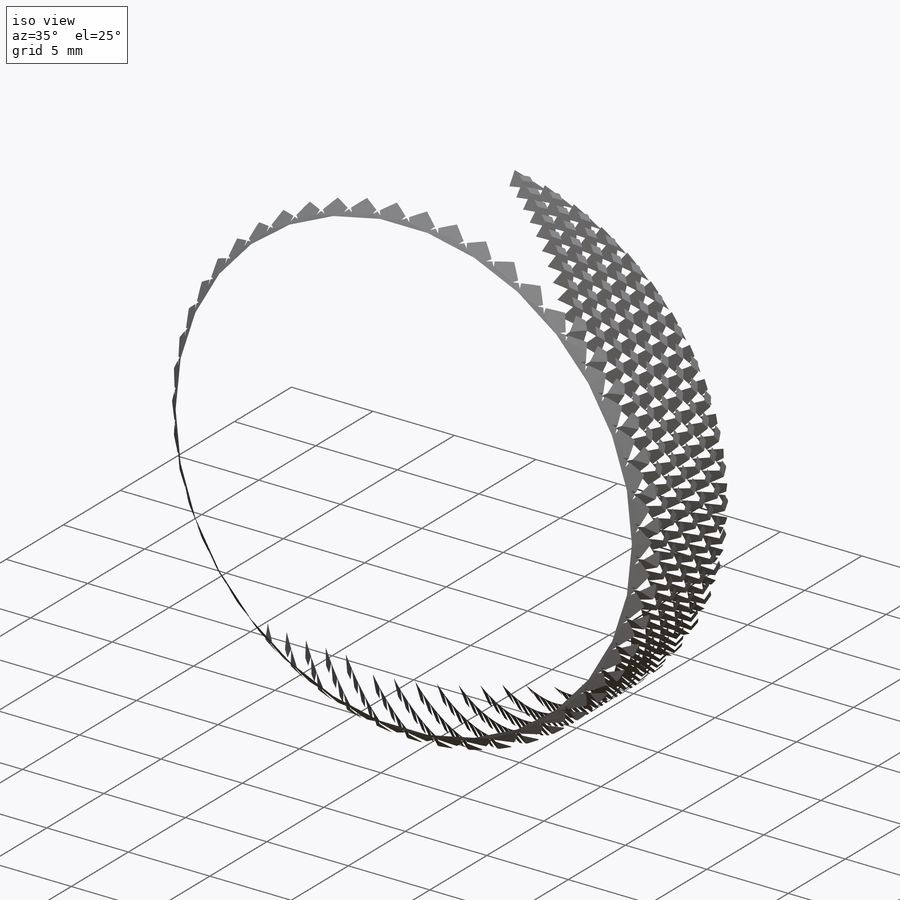
[diagram: iso view]
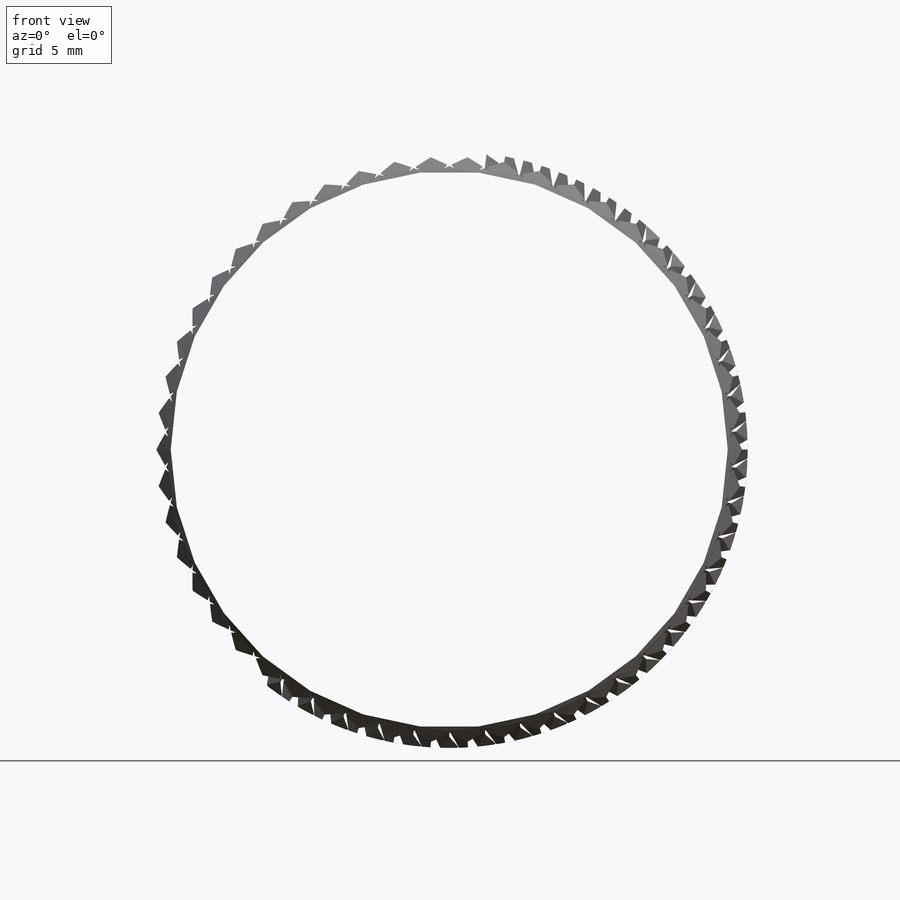
[diagram: front view]
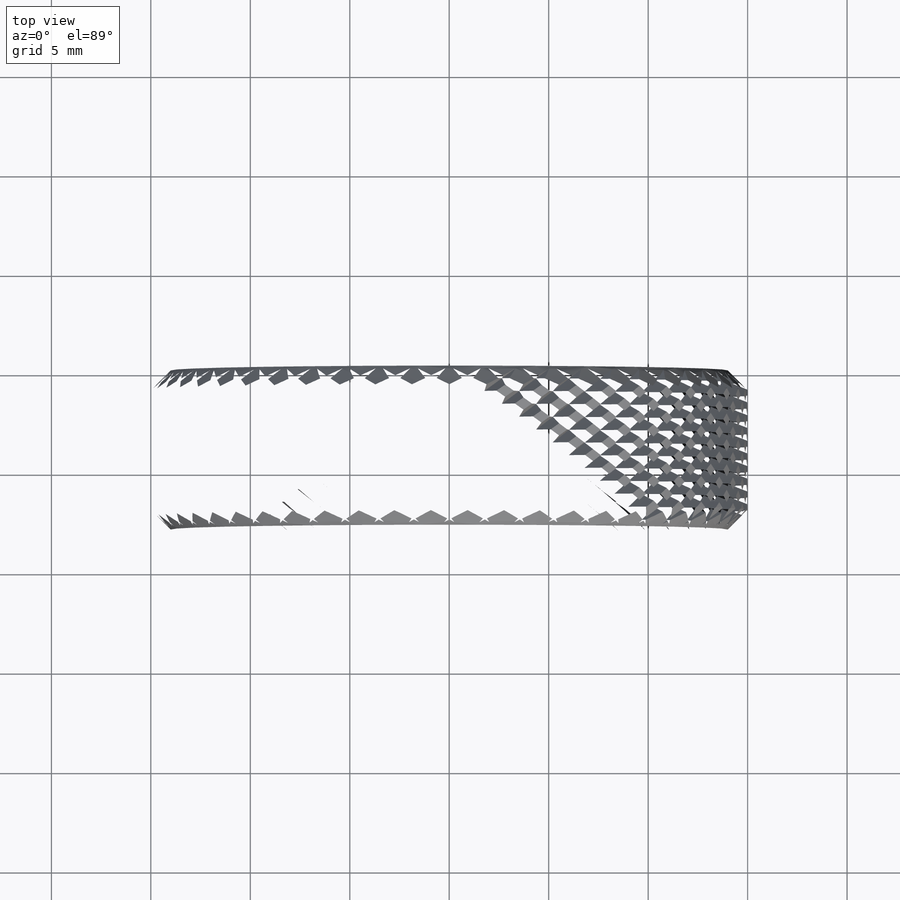
[diagram: top view]
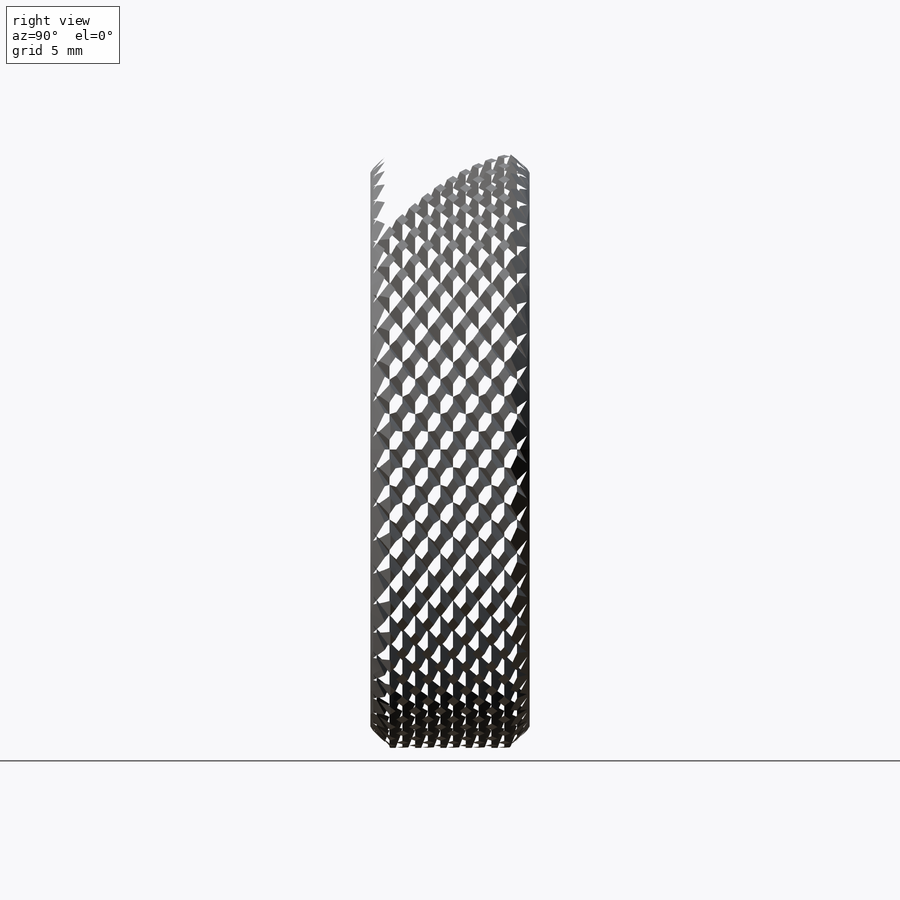
[diagram: right view]
SOLIDWORKS PART (.sldprt)
format: sldprt  version: not decoded by parser v0  size: 4,017,664 bytes
history: native  units: mm
features: sketch x8, plane x3, extrude x3, sweep x2, material x1, chamfer x1, cut_extrude x1 (+8 scaffold rows collapsed)
feature tree (27):
  scaffold x8  (default folders/planes/origin — collapsed)
  material  "Материал <не указан>"
  plane  "Спереди"
  plane  "Сверху"
  plane  "Справа"
  sketch  "Эскиз1"  dims[D1=30.0mm]
  extrude  "Бобышка-Вытянуть1"  Depth=8mm
  chamfer  "Фаска1"  Distance=1mm Angle=45deg
  sketch  "Эскиз8"
  sketch  "Эскиз6"  dims[c1.D1=~1.797486mm c2.D1=60.0deg c2.D2=~2.872929mm c3.D2=60.0deg c3.D3=1.0mm c3.D4=50.0]
  sweep  "Вырез-По траектории4"
  sketch  "Эскиз9"  dims[c1.D1=1.0mm c1.D2=~0.402212mm c2.D2=60.0deg c2.D3=1.0mm c3.D3=60.0deg c3.D4=50.0]
  sketch  "Эскиз10"
  sweep  "Вырез-По траектории5"
  sketch  "Эскиз11"
  extrude  "Бобышка-Вытянуть2"  Depth=3mm
  sketch  "Эскиз12"
  extrude  "Бобышка-Вытянуть3"  Depth=2mm
  sketch  "Эскиз13"  dims[D1=6.0mm]
  cut_extrude  "Вырез-Вытянуть1"  [1 undecoded]
decode coverage: 8 of 15 modeling features carry decoded parameters
note: ~ marks probable driven/reference dimensions
note: 1 parameter value undecoded
note: suppression state not decoded; provenance and decode notes live in map.json
